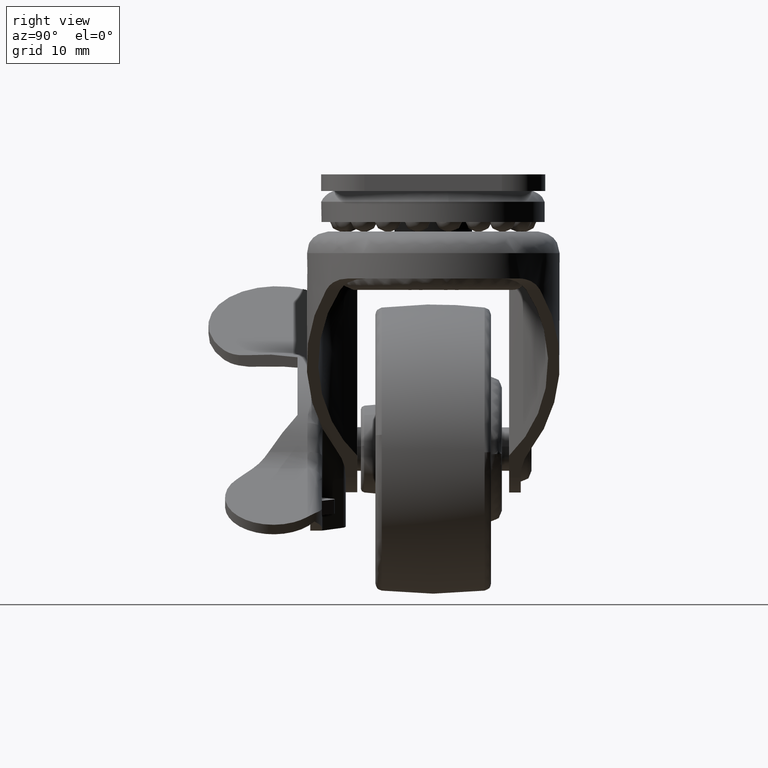
[diagram: clean part render]
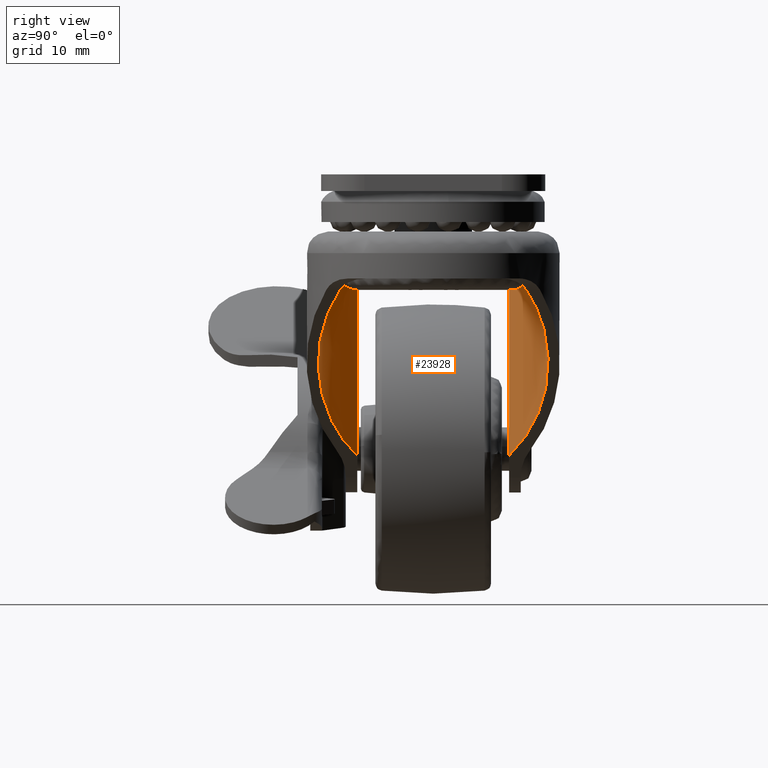
[diagram: same view with one face highlighted and labeled with its STEP entity id]
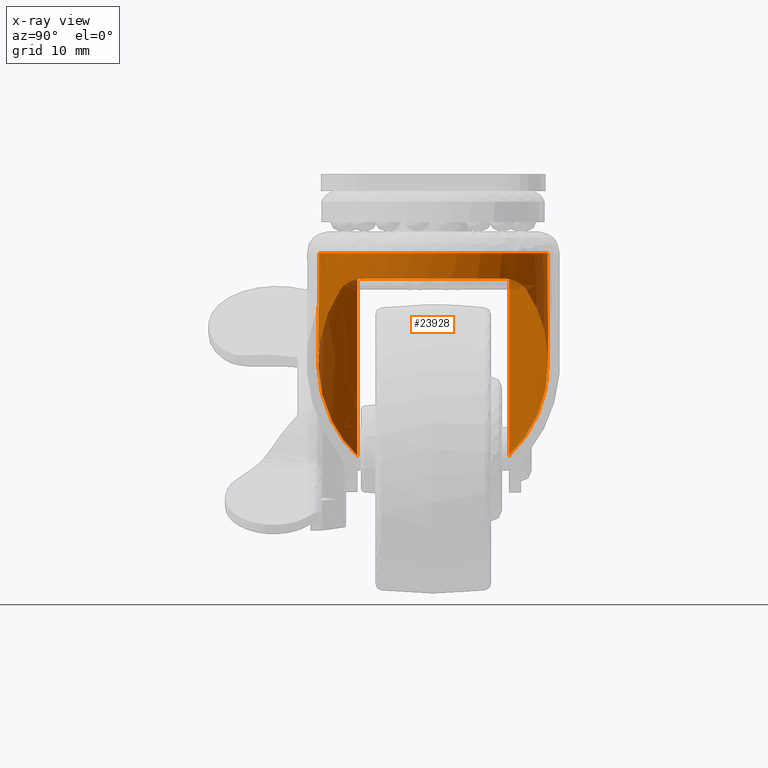
[diagram: x-ray of the same camera — body ghosted, the highlighted face saturated]
A machine part, right view. The second image highlights one B-rep face of the part: STEP entity #23928.
The next image is the same camera in x-ray: the body ghosted, the highlighted face saturated — about 1% of this face is hidden behind the body in this view.
In plain terms, the highlighted face is a freeform B-spline surface patch.
Its self-contained STEP definition (entity closure, byte-faithful):
#22165=CARTESIAN_POINT('',(8.060150754720381,10.500000000000000,27.100000999999899));
#22166=VERTEX_POINT('',#22165);
#22200=CARTESIAN_POINT('',(8.060150754720359,-10.500000000000000,27.100000999999899));
#22201=VERTEX_POINT('',#22200);
#22202=CARTESIAN_POINT('',(8.060150754720359,-10.500000000000000,27.100000999999899));
#22203=CARTESIAN_POINT('',(15.321978167868219,-18.757630910306862,27.100000999999907));
#22204=CARTESIAN_POINT('',(25.610989083934111,-14.877056210822500,27.100000999999899));
#22205=CARTESIAN_POINT('',(35.899999999999991,-10.996481511338128,27.100000999999907));
#22206=CARTESIAN_POINT('',(35.899999999999999,0.0,27.100000999999899));
#22207=CARTESIAN_POINT('',(35.899999999999991,10.996481511338116,27.100000999999907));
#22208=CARTESIAN_POINT('',(25.610989083934129,14.877056210822490,27.100000999999899));
#22209=CARTESIAN_POINT('',(15.321978167868245,18.757630910306872,27.100000999999907));
#22210=CARTESIAN_POINT('',(8.060150754720381,10.500000000000000,27.100000999999899));
#22218=(BOUNDED_CURVE()B_SPLINE_CURVE(2,(#22202,#22203,#22204,#22205,#22206,#22207,#22208,#22209,#22210),.UNSPECIFIED.,.F.,.U.)B_SPLINE_CURVE_WITH_KNOTS((3,2,2,2,3),(0.0,0.250000000000000,0.500000000000000,0.750000000000000,1.0),.UNSPECIFIED.)CURVE()GEOMETRIC_REPRESENTATION_ITEM()RATIONAL_B_SPLINE_CURVE((1.0,0.822463493176440,1.0,0.822463493176440,1.0,0.822463493176440,1.0,0.822463493176440,1.0))REPRESENTATION_ITEM(''));
#22219=EDGE_CURVE('',#22201,#22166,#22218,.T.);
#23704=CARTESIAN_POINT('',(8.060150754720359,-10.500000000000000,-0.910722756673664));
#23705=VERTEX_POINT('',#23704);
#23706=CARTESIAN_POINT('',(8.060150754720359,-10.500000000000000,27.100000999999899));
#23707=CARTESIAN_POINT('',(8.060150754720359,-10.500000000000000,-0.910722756673664));
#23708=QUASI_UNIFORM_CURVE('',1,(#23706,#23707),.UNSPECIFIED.,.F.,.U.);
#23709=EDGE_CURVE('',#22201,#23705,#23708,.T.);
#23754=CARTESIAN_POINT('',(8.060150754720381,10.500000000000000,-0.910722756673633));
#23755=VERTEX_POINT('',#23754);
#23756=CARTESIAN_POINT('',(8.060150754720381,10.500000000000000,27.100000999999899));
#23757=CARTESIAN_POINT('',(8.060150754720381,10.500000000000000,-0.910722756673633));
#23758=QUASI_UNIFORM_CURVE('',1,(#23756,#23757),.UNSPECIFIED.,.F.,.U.);
#23759=EDGE_CURVE('',#22166,#23755,#23758,.T.);
#23801=CARTESIAN_POINT('',(7.758350435361598,-10.146527284573191,27.800269093916750));
#23802=CARTESIAN_POINT('',(7.758350435361598,-10.146527284573191,-1.628497552938427));
#23803=CARTESIAN_POINT('',(18.639168810749602,-23.274089236778700,27.800269093916743));
#23804=CARTESIAN_POINT('',(18.639168810749602,-23.274089236778700,-1.628497552938427));
#23805=CARTESIAN_POINT('',(30.975745160511131,-11.504043557441721,27.800269093916750));
#23806=CARTESIAN_POINT('',(30.975745160511131,-11.504043557441721,-1.628497552938427));
#23807=CARTESIAN_POINT('',(43.312321510272660,0.266002121895258,27.800269093916743));
#23808=CARTESIAN_POINT('',(43.312321510272660,0.266002121895258,-1.628497552938427));
#23809=CARTESIAN_POINT('',(30.710391006415581,11.751490309305099,27.800269093916750));
#23810=CARTESIAN_POINT('',(30.710391006415581,11.751490309305099,-1.628497552938427));
#23811=CARTESIAN_POINT('',(18.108460502558525,23.236978496714940,27.800269093916743));
#23812=CARTESIAN_POINT('',(18.108460502558525,23.236978496714940,-1.628497552938427));
#23813=CARTESIAN_POINT('',(7.530016621432187,9.864558507010944,27.800269093916750));
#23814=CARTESIAN_POINT('',(7.530016621432187,9.864558507010944,-1.628497552938427));
#23822=(BOUNDED_SURFACE()B_SPLINE_SURFACE(1,2,((#23801,#23803,#23805,#23807,#23809,#23811,#23813),(#23802,#23804,#23806,#23808,#23810,#23812,#23814)),.UNSPECIFIED.,.F.,.F.,.U.)B_SPLINE_SURFACE_WITH_KNOTS((2,2),(3,2,2,3),(0.0,29.428766646855170),(0.0,27.654067047515369,55.308134095030731,82.962201142546093),.UNSPECIFIED.)GEOMETRIC_REPRESENTATION_ITEM()RATIONAL_B_SPLINE_SURFACE(((1.0,0.681998360062498,1.0,0.681998360062498,1.0,0.681998360062498,1.0),(1.0,0.681998360062498,1.0,0.681998360062498,1.0,0.681998360062498,1.0)))REPRESENTATION_ITEM('')SURFACE());
#23823=ORIENTED_EDGE('',*,*,#23709,.F.);
#23824=ORIENTED_EDGE('',*,*,#22219,.T.);
#23825=ORIENTED_EDGE('',*,*,#23759,.T.);
#23826=CARTESIAN_POINT('',(29.333057458796201,12.872608067940440,21.999046749210351));
#23827=VERTEX_POINT('',#23826);
#23828=CARTESIAN_POINT('',(8.060150754720381,10.500000000000000,-0.910722756673633));
#23829=CARTESIAN_POINT('',(17.616872869065194,21.367221078505050,9.381349874353790));
#23830=CARTESIAN_POINT('',(29.333057458796201,12.872608067940440,21.999046749210351));
#23838=(BOUNDED_CURVE()B_SPLINE_CURVE(2,(#23828,#23829,#23830),.UNSPECIFIED.,.F.,.U.)CURVE()GEOMETRIC_REPRESENTATION_ITEM()QUASI_UNIFORM_CURVE()RATIONAL_B_SPLINE_CURVE((1.0,0.739544937808786,1.0))REPRESENTATION_ITEM(''));
#23839=EDGE_CURVE('',#23755,#23827,#23838,.T.);
#23840=ORIENTED_EDGE('',*,*,#23839,.T.);
#23841=CARTESIAN_POINT('',(33.0,9.154780172128380,23.599997999999800));
#23842=VERTEX_POINT('',#23841);
#23843=CARTESIAN_POINT('',(29.333057458796201,12.872608067940440,21.999046749210351));
#23844=CARTESIAN_POINT('',(29.431362077544019,12.801334037814280,22.105099181840782));
#23845=CARTESIAN_POINT('',(29.533023351231300,12.725909677203710,22.205558171378300));
#23846=CARTESIAN_POINT('',(29.689993808077169,12.606282078047160,22.348178467582329));
#23847=CARTESIAN_POINT('',(29.743183893688940,12.565229133555169,22.394468404016600));
#23848=CARTESIAN_POINT('',(29.850204277115729,12.481509975322471,22.483764689875301));
#23849=CARTESIAN_POINT('',(29.904057002501268,12.438829485483661,22.526802218928111));
#23850=CARTESIAN_POINT('',(30.174788071344452,12.221328608090889,22.734323608736482));
#23851=CARTESIAN_POINT('',(30.396008204541690,12.034243822734750,22.875942893410230));
#23852=CARTESIAN_POINT('',(30.675125866272531,11.783773310154510,23.027072670419141));
#23853=CARTESIAN_POINT('',(30.731082438496220,11.732846695753651,23.055996282597381));
#23854=CARTESIAN_POINT('',(30.843193335979489,11.629315550213160,23.111327361668000));
#23855=CARTESIAN_POINT('',(30.899435947492741,11.576625240465440,23.137771377369280));
#23856=CARTESIAN_POINT('',(31.067231918156882,11.417101269431020,23.212961667101951));
#23857=CARTESIAN_POINT('',(31.178121156880071,11.308576740949279,23.257723990282290));
#23858=CARTESIAN_POINT('',(31.507479504079800,10.976571298839151,23.377758798480851));
#23859=CARTESIAN_POINT('',(31.722628912128769,10.746666034539849,23.438849254550131));
#23860=CARTESIAN_POINT('',(32.142411895713757,10.269989913541229,23.530586301934910));
#23861=CARTESIAN_POINT('',(32.347053147224351,10.023216615349620,23.561193814786371));
#23862=CARTESIAN_POINT('',(32.595406971709792,9.704239293379333,23.583851147970179));
#23863=CARTESIAN_POINT('',(32.644712082459492,9.639906080935077,23.587597498621090));
#23864=CARTESIAN_POINT('',(32.742063398320262,9.510854496349602,23.593578576350961));
#23865=CARTESIAN_POINT('',(32.845646275140624,9.371338685122002,23.598403139144811));
#23866=CARTESIAN_POINT('',(32.946645244630510,9.230545464805248,23.599998902476418));
#23867=CARTESIAN_POINT('',(33.0,9.154780172128380,23.599997999999800));
#23868=B_SPLINE_CURVE_WITH_KNOTS('',3,(#23843,#23844,#23845,#23846,#23847,#23848,#23849,#23850,#23851,#23852,#23853,#23854,#23855,#23856,#23857,#23858,#23859,#23860,#23861,#23862,#23863,#23864,#23865,#23866,#23867),.UNSPECIFIED.,.F.,.U.,(4,2,2,2,2,2,2,2,2,2,2,1,4),(0.0,0.015625000000000,0.023437500000000,0.031250000000000,0.062500000000001,0.070312500000002,0.078125000000002,0.093750000000002,0.125000000000002,0.156250000000003,0.164062500000003,0.171875000000003,0.180882617280763),.UNSPECIFIED.);
#23869=EDGE_CURVE('',#23827,#23842,#23868,.T.);
#23870=ORIENTED_EDGE('',*,*,#23869,.T.);
#23871=CARTESIAN_POINT('',(33.0,-9.154780172128380,23.599997999999800));
#23872=VERTEX_POINT('',#23871);
#23873=CARTESIAN_POINT('',(33.0,9.154780172128380,23.599997999999800));
#23874=CARTESIAN_POINT('',(39.446923076922893,6.938894E-015,23.599997999999800));
#23875=CARTESIAN_POINT('',(33.0,-9.154780172128380,23.599997999999800));
#23883=(BOUNDED_CURVE()B_SPLINE_CURVE(2,(#23873,#23874,#23875),.UNSPECIFIED.,.F.,.U.)CURVE()GEOMETRIC_REPRESENTATION_ITEM()QUASI_UNIFORM_CURVE()RATIONAL_B_SPLINE_CURVE((1.0,0.817610062893090,1.0))REPRESENTATION_ITEM(''));
#23884=EDGE_CURVE('',#23842,#23872,#23883,.T.);
#23885=ORIENTED_EDGE('',*,*,#23884,.T.);
#23886=CARTESIAN_POINT('',(29.333057458796201,-12.872608067940440,21.999046749210351));
#23887=VERTEX_POINT('',#23886);
#23888=CARTESIAN_POINT('',(33.0,-9.154780172128380,23.599997999999800));
#23889=CARTESIAN_POINT('',(32.851966951880136,-9.364992473265778,23.600006233886280));
#23890=CARTESIAN_POINT('',(32.699046391883947,-9.571314580093624,23.593442430982471));
#23891=CARTESIAN_POINT('',(32.344242178815463,-10.026586500806641,23.560755077652640));
#23892=CARTESIAN_POINT('',(32.139651250762988,-10.273348947342109,23.530201741341880));
#23893=CARTESIAN_POINT('',(31.874577239348909,-10.574064094097190,23.471993927312202));
#23894=CARTESIAN_POINT('',(31.821103964059230,-10.633806752252109,23.459343647672839));
#23895=CARTESIAN_POINT('',(31.713870595730182,-10.751817574654410,23.432068822609541));
#23896=CARTESIAN_POINT('',(31.660034066490152,-10.810173219297340,23.417428288740741));
#23897=CARTESIAN_POINT('',(31.497923106297112,-10.983294349988750,23.370365753452951));
#23898=CARTESIAN_POINT('',(31.389046283993601,-11.096114603775201,23.334806613385869));
#23899=CARTESIAN_POINT('',(31.060503633983839,-11.426803016158480,23.214405258807378));
#23900=CARTESIAN_POINT('',(30.838896417739129,-11.636912378211839,23.115941258578172));
#23901=CARTESIAN_POINT('',(30.560645587980311,-11.886477506902050,22.965034929328130));
#23902=CARTESIAN_POINT('',(30.504935619940522,-11.935735888680520,22.933454335258482));
#23903=CARTESIAN_POINT('',(30.393456440012631,-12.032935108223800,22.867329936266682));
#23904=CARTESIAN_POINT('',(30.337561837553508,-12.080981337064800,22.832702949429589));
#23905=CARTESIAN_POINT('',(30.170981283571429,-12.222206559105070,22.724819471009610));
#23906=CARTESIAN_POINT('',(30.061450002268650,-12.312444397639871,22.647633881445849));
#23907=CARTESIAN_POINT('',(29.738421004924049,-12.571770768908880,22.399452113795970));
#23908=CARTESIAN_POINT('',(29.530413985154500,-12.729518164991360,22.211957614918770));
#23909=CARTESIAN_POINT('',(29.333057458796201,-12.872608067940440,21.999046749210351));
#23910=B_SPLINE_CURVE_WITH_KNOTS('',3,(#23888,#23889,#23890,#23891,#23892,#23893,#23894,#23895,#23896,#23897,#23898,#23899,#23900,#23901,#23902,#23903,#23904,#23905,#23906,#23907,#23908,#23909),.UNSPECIFIED.,.F.,.U.,(4,2,2,2,2,2,2,2,2,2,4),(0.818733335059588,0.843749999999996,0.874999999999996,0.882812499999996,0.890624999999997,0.906249999999997,0.937499999999998,0.945312499999998,0.953124999999998,0.968749999999999,1.0),.UNSPECIFIED.);
#23911=EDGE_CURVE('',#23872,#23887,#23910,.T.);
#23912=ORIENTED_EDGE('',*,*,#23911,.T.);
#23913=CARTESIAN_POINT('',(29.333057458796201,-12.872608067940440,21.999046749210351));
#23914=CARTESIAN_POINT('',(17.616872869065055,-21.367221078505096,9.381349874353649));
#23915=CARTESIAN_POINT('',(8.060150754720359,-10.500000000000000,-0.910722756673664));
#23923=(BOUNDED_CURVE()B_SPLINE_CURVE(2,(#23913,#23914,#23915),.UNSPECIFIED.,.F.,.U.)CURVE()GEOMETRIC_REPRESENTATION_ITEM()QUASI_UNIFORM_CURVE()RATIONAL_B_SPLINE_CURVE((1.0,0.739544937808782,1.0))REPRESENTATION_ITEM(''));
#23924=EDGE_CURVE('',#23887,#23705,#23923,.T.);
#23925=ORIENTED_EDGE('',*,*,#23924,.T.);
#23926=EDGE_LOOP('',(#23823,#23824,#23825,#23840,#23870,#23885,#23912,#23925));
#23927=FACE_OUTER_BOUND('',#23926,.T.);
#23928=ADVANCED_FACE('',(#23927),#23822,.F.);